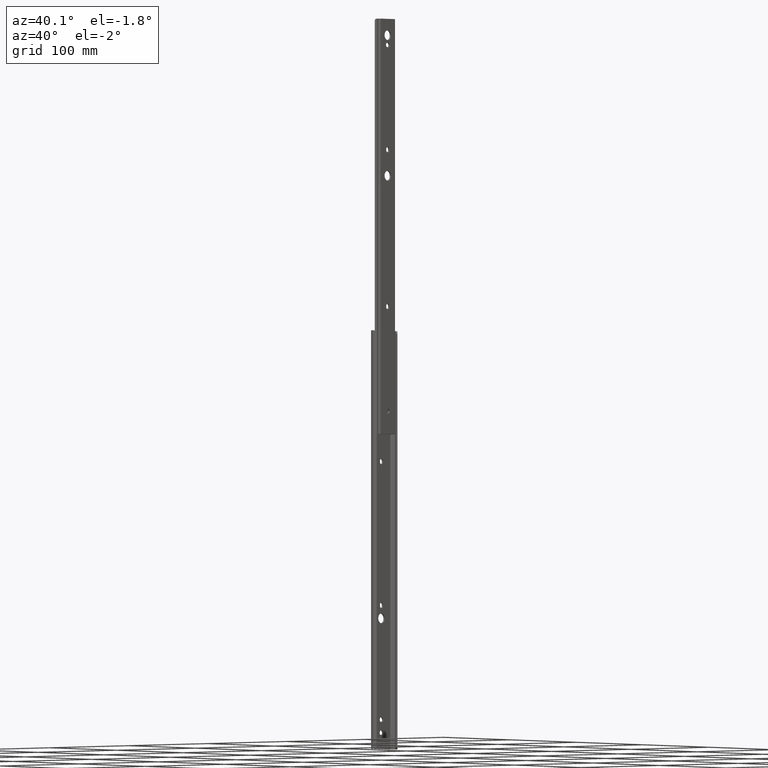
[diagram: clean part render]
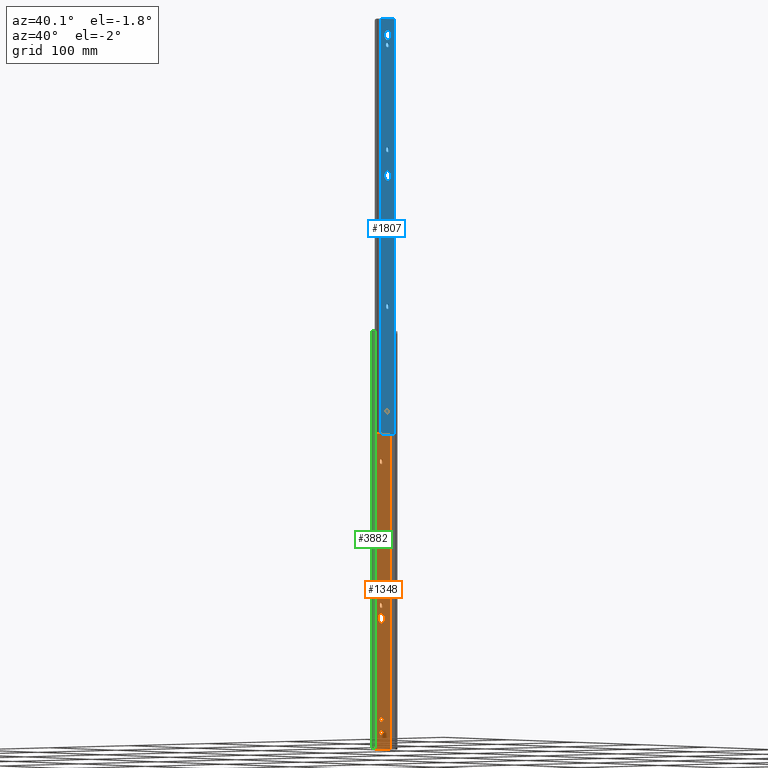
[diagram: same view with three faces highlighted in distinct colors, each labeled with its STEP entity id]
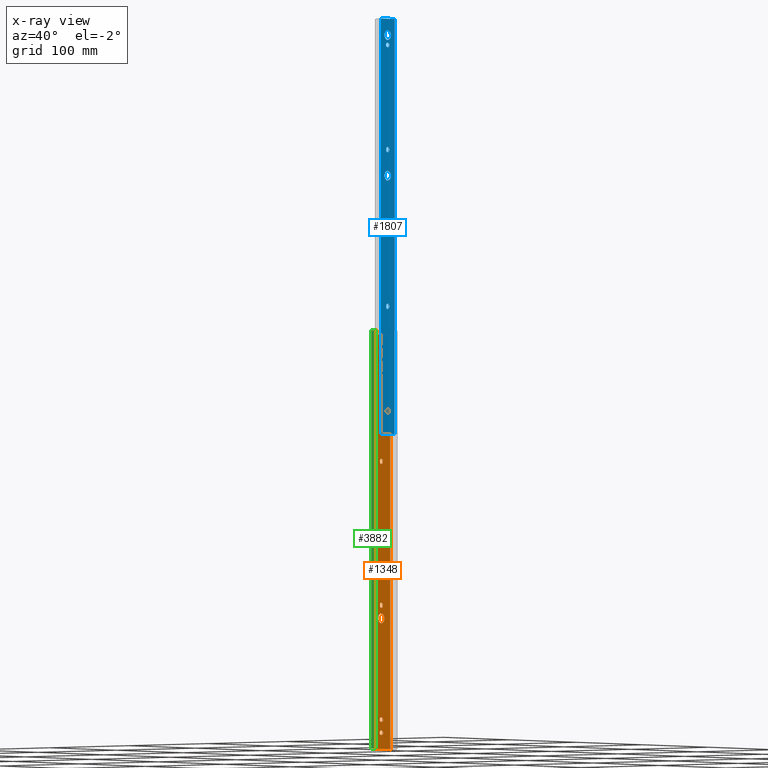
[diagram: x-ray of the same camera — body ghosted, the three highlighted faces saturated]
A machine part, auxiliary view with three faces highlighted in distinct colors.
The next image is the same camera in x-ray (body ghosted, the three faces saturated) — at least one of them is partly hidden behind the body in this view.
Their STEP definitions:

[orange] entity #1348 — the highlighted planar face has unit normal (1, -0, 0).
#23 = ORIENTED_EDGE ( 'NONE', *, *, #4455, .F. ) ;
#26 = CARTESIAN_POINT ( 'NONE',  ( 2.598992476797140713E-15, 0.3999999999999444555, -377.8000000000000114 ) ) ;
#50 = DIRECTION ( 'NONE',  ( 6.497481191993754238E-15, 1.000000000000000000, 0.0000000000000000000 ) ) ;
#55 = CIRCLE ( 'NONE', #1016, 2.249999999999918732 ) ;
#59 = VECTOR ( 'NONE', #2347, 1000.000000000000000 ) ;
#63 = AXIS2_PLACEMENT_3D ( 'NONE', #2251, #1122, #357 ) ;
#71 = VERTEX_POINT ( 'NONE', #1328 ) ;
#75 = DIRECTION ( 'NONE',  ( 6.497481191993754238E-15, 1.000000000000000000, 0.0000000000000000000 ) ) ;
#79 = CARTESIAN_POINT ( 'NONE',  ( 1.461933268198599713E-14, 2.250000000000001776, -127.4000000000000625 ) ) ;
#89 = EDGE_CURVE ( 'NONE', #1954, #2370, #321, .T. ) ;
#104 = VERTEX_POINT ( 'NONE', #4952 ) ;
#128 = ORIENTED_EDGE ( 'NONE', *, *, #3536, .F. ) ;
#142 = CARTESIAN_POINT ( 'NONE',  ( -2.598992476797308345E-15, -0.3999999999999702127, -388.2500000000001705 ) ) ;
#149 = CARTESIAN_POINT ( 'NONE',  ( 2.598992476798708574E-15, 0.4000000000001857625, -375.5500000000000682 ) ) ;
#179 = EDGE_CURVE ( 'NONE', #4694, #3589, #778, .T. ) ;
#180 = DIRECTION ( 'NONE',  ( 6.497481191993753449E-15, 1.000000000000000000, 0.0000000000000000000 ) ) ;
#192 = ORIENTED_EDGE ( 'NONE', *, *, #2171, .F. ) ;
#195 = CIRCLE ( 'NONE', #2517, 1.000000000000000888 ) ;
#197 = VERTEX_POINT ( 'NONE', #1107 ) ;
#210 = EDGE_CURVE ( 'NONE', #3334, #4040, #837, .T. ) ;
#224 = VECTOR ( 'NONE', #1625, 1000.000000000000000 ) ;
#251 = FACE_BOUND ( 'NONE', #2062, .T. ) ;
#272 = EDGE_CURVE ( 'NONE', #347, #1092, #1963, .T. ) ;
#280 = CARTESIAN_POINT ( 'NONE',  ( -3.964412013597883288E-26, -6.101459775647926783E-12, -279.4000000000000341 ) ) ;
#289 = DIRECTION ( 'NONE',  ( 6.497481191993755816E-15, 1.000000000000000000, 0.0000000000000000000 ) ) ;
#299 = EDGE_CURVE ( 'NONE', #2993, #1176, #2409, .T. ) ;
#305 = CIRCLE ( 'NONE', #3035, 2.250000000000005329 ) ;
#307 = EDGE_CURVE ( 'NONE', #3901, #2749, #4296, .T. ) ;
#321 = LINE ( 'NONE', #400, #1075 ) ;
#322 = ORIENTED_EDGE ( 'NONE', *, *, #2507, .F. ) ;
#346 = AXIS2_PLACEMENT_3D ( 'NONE', #725, #3217, #2029 ) ;
#347 = VERTEX_POINT ( 'NONE', #992 ) ;
#357 = DIRECTION ( 'NONE',  ( 6.497481191993753449E-15, 1.000000000000000000, 0.0000000000000000000 ) ) ;
#400 = CARTESIAN_POINT ( 'NONE',  ( -2.598992476797466512E-15, -0.3999999999999945821, -18.15000000000000924 ) ) ;
#410 = CARTESIAN_POINT ( 'NONE',  ( 0.0000000000000000000, -13.28582827844802061, 0.0000000000000000000 ) ) ;
#421 = CARTESIAN_POINT ( 'NONE',  ( 1.461933268198595295E-14, 2.250000000000001332, -127.4000000000000199 ) ) ;
#437 = DIRECTION ( 'NONE',  ( 6.497481191993753449E-15, 1.000000000000000000, 0.0000000000000000000 ) ) ;
#439 = CIRCLE ( 'NONE', #4050, 2.249999999999974243 ) ;
#440 = CARTESIAN_POINT ( 'NONE',  ( -2.598992476797423125E-15, -0.3999999999999941380, -18.14999999999999858 ) ) ;
#446 = DIRECTION ( 'NONE',  ( 1.000000000000000000, -6.497481191993754238E-15, 0.0000000000000000000 ) ) ;
#458 = EDGE_CURVE ( 'NONE', #694, #3476, #993, .T. ) ;
#478 = ORIENTED_EDGE ( 'NONE', *, *, #3625, .F. ) ;
#484 = EDGE_CURVE ( 'NONE', #1860, #2938, #4932, .T. ) ;
#488 = LINE ( 'NONE', #2880, #1402 ) ;
#506 = DIRECTION ( 'NONE',  ( 1.000000000000000000, -6.497481191993754238E-15, 0.0000000000000000000 ) ) ;
#514 = ORIENTED_EDGE ( 'NONE', *, *, #89, .F. ) ;
#522 = ORIENTED_EDGE ( 'NONE', *, *, #1294, .F. ) ;
#531 = ORIENTED_EDGE ( 'NONE', *, *, #3164, .T. ) ;
#567 = DIRECTION ( 'NONE',  ( 6.497481191993754238E-15, 1.000000000000000000, 0.0000000000000000000 ) ) ;
#568 = EDGE_CURVE ( 'NONE', #4557, #3025, #3811, .T. ) ;
#573 = EDGE_CURVE ( 'NONE', #347, #2818, #2307, .T. ) ;
#583 = CARTESIAN_POINT ( 'NONE',  ( 4.257297669784303651E-27, 6.552227769478082886E-13, -267.1000000000000227 ) ) ;
#604 = CIRCLE ( 'NONE', #3021, 2.249999999999999112 ) ;
#615 = AXIS2_PLACEMENT_3D ( 'NONE', #4773, #4278, #567 ) ;
#648 = VERTEX_POINT ( 'NONE', #2280 ) ;
#662 = EDGE_CURVE ( 'NONE', #3695, #197, #1527, .T. ) ;
#690 = DIRECTION ( 'NONE',  ( 1.000000000000000000, -6.497481191993754238E-15, 0.0000000000000000000 ) ) ;
#694 = VERTEX_POINT ( 'NONE', #1511 ) ;
#706 = DIRECTION ( 'NONE',  ( 6.497481191993754238E-15, 1.000000000000000000, 0.0000000000000000000 ) ) ;
#713 = VERTEX_POINT ( 'NONE', #1137 ) ;
#722 = DIRECTION ( 'NONE',  ( 1.000000000000000000, -6.497481191993754238E-15, 0.0000000000000000000 ) ) ;
#725 = CARTESIAN_POINT ( 'NONE',  ( 2.598992476797496094E-15, 0.3999999999999991340, -15.90000000000000391 ) ) ;
#737 = CARTESIAN_POINT ( 'NONE',  ( -1.461933268198592455E-14, -2.249999999999996891, -41.70000000000001705 ) ) ;
#739 = CARTESIAN_POINT ( 'NONE',  ( -4.873110893995315126E-14, -7.500000000000000000, -2.199999999999999734 ) ) ;
#754 = ORIENTED_EDGE ( 'NONE', *, *, #484, .F. ) ;
#769 = AXIS2_PLACEMENT_3D ( 'NONE', #4860, #1789, #1699 ) ;
#778 = LINE ( 'NONE', #2634, #2036 ) ;
#801 = DIRECTION ( 'NONE',  ( 0.0000000000000000000, 0.0000000000000000000, 1.000000000000000000 ) ) ;
#833 = EDGE_CURVE ( 'NONE', #3615, #4426, #439, .T. ) ;
#837 = CIRCLE ( 'NONE', #346, 2.250000000000005329 ) ;
#842 = CARTESIAN_POINT ( 'NONE',  ( -2.598992476797308345E-15, -0.3999999999999702127, -388.2500000000001705 ) ) ;
#853 = CIRCLE ( 'NONE', #1576, 2.250000000000005329 ) ;
#877 = CARTESIAN_POINT ( 'NONE',  ( 0.0000000000000000000, -13.28582827844802061, -406.4000000000000341 ) ) ;
#879 = CARTESIAN_POINT ( 'NONE',  ( 2.598992476797140713E-15, 0.3999999999999444555, -377.8000000000000114 ) ) ;
#883 = DIRECTION ( 'NONE',  ( 6.497481191993754238E-15, 1.000000000000000000, 0.0000000000000000000 ) ) ;
#900 = DIRECTION ( 'NONE',  ( -8.165942964201503348E-28, -1.257674520083127336E-13, -1.000000000000000000 ) ) ;
#901 = EDGE_CURVE ( 'NONE', #3476, #3589, #195, .T. ) ;
#906 = DIRECTION ( 'NONE',  ( -0.0000000000000000000, -0.0000000000000000000, -1.000000000000000000 ) ) ;
#913 = ORIENTED_EDGE ( 'NONE', *, *, #568, .F. ) ;
#926 = CIRCLE ( 'NONE', #3417, 2.249999999999998224 ) ;
#932 = CARTESIAN_POINT ( 'NONE',  ( -2.598992476797308345E-15, -0.3999999999999702127, -390.5000000000000568 ) ) ;
#941 = FACE_BOUND ( 'NONE', #2264, .T. ) ;
#953 = AXIS2_PLACEMENT_3D ( 'NONE', #3590, #4770, #1703 ) ;
#977 = CARTESIAN_POINT ( 'NONE',  ( 8.632441935927393671E-14, 13.28582827844788916, -406.4000000000000341 ) ) ;
#980 = ORIENTED_EDGE ( 'NONE', *, *, #3191, .F. ) ;
#987 = CARTESIAN_POINT ( 'NONE',  ( -4.873110893995315126E-14, -7.500000000000000000, -3.699999999999999734 ) ) ;
#992 = CARTESIAN_POINT ( 'NONE',  ( 0.0000000000000000000, -13.28582827844802061, -406.4000000000000341 ) ) ;
#993 = CIRCLE ( 'NONE', #4375, 1.000000000000000888 ) ;
#994 = CARTESIAN_POINT ( 'NONE',  ( -1.461933268198167733E-14, -2.249999999999342748, -267.1000000000000227 ) ) ;
#1016 = AXIS2_PLACEMENT_3D ( 'NONE', #932, #4354, #883 ) ;
#1029 = CARTESIAN_POINT ( 'NONE',  ( -4.697678901811484297E-14, -7.230000000000000426, -1.770839271567072711E-15 ) ) ;
#1035 = DIRECTION ( 'NONE',  ( 6.497481191993753449E-15, 1.000000000000000000, 0.0000000000000000000 ) ) ;
#1043 = FACE_OUTER_BOUND ( 'NONE', #2665, .T. ) ;
#1044 = EDGE_LOOP ( 'NONE', ( #4308, #4279, #1160, #2067, #2454 ) ) ;
#1061 = DIRECTION ( 'NONE',  ( -6.497481191993754238E-15, -1.000000000000000000, -0.0000000000000000000 ) ) ;
#1067 = DIRECTION ( 'NONE',  ( -6.497481191993754238E-15, -1.000000000000000000, -0.0000000000000000000 ) ) ;
#1075 = VECTOR ( 'NONE', #3011, 1000.000000000000000 ) ;
#1083 = ORIENTED_EDGE ( 'NONE', *, *, #272, .T. ) ;
#1089 = CIRCLE ( 'NONE', #3330, 4.749999999999976019 ) ;
#1092 = VERTEX_POINT ( 'NONE', #3329 ) ;
#1098 = EDGE_CURVE ( 'NONE', #2818, #4370, #4972, .T. ) ;
#1107 = CARTESIAN_POINT ( 'NONE',  ( 1.461933268199019071E-14, 2.250000000000653255, -266.3000000000000682 ) ) ;
#1114 = ORIENTED_EDGE ( 'NONE', *, *, #2203, .F. ) ;
#1120 = CIRCLE ( 'NONE', #953, 2.250000000000005329 ) ;
#1122 = DIRECTION ( 'NONE',  ( 1.000000000000000000, -6.497481191993754238E-15, 0.0000000000000000000 ) ) ;
#1137 = CARTESIAN_POINT ( 'NONE',  ( -1.461933268198167733E-14, -2.249999999999342748, -267.1000000000000227 ) ) ;
#1153 = DIRECTION ( 'NONE',  ( 6.497481191993755816E-15, 1.000000000000000000, 0.0000000000000000000 ) ) ;
#1160 = ORIENTED_EDGE ( 'NONE', *, *, #1720, .F. ) ;
#1161 = DIRECTION ( 'NONE',  ( 1.000000000000000000, -6.497481191993753449E-15, 0.0000000000000000000 ) ) ;
#1165 = VECTOR ( 'NONE', #2228, 1000.000000000000000 ) ;
#1176 = VERTEX_POINT ( 'NONE', #4192 ) ;
#1195 = CARTESIAN_POINT ( 'NONE',  ( 1.721832515878292012E-14, 2.649999999999919087, -377.8000000000000114 ) ) ;
#1199 = CARTESIAN_POINT ( 'NONE',  ( -1.461933268198527138E-14, -2.249999999999896083, -40.89999999999997726 ) ) ;
#1205 = ORIENTED_EDGE ( 'NONE', *, *, #3706, .F. ) ;
#1206 = CARTESIAN_POINT ( 'NONE',  ( 2.040444164743638317E-27, 3.140361787053557620E-13, -127.4000000000000341 ) ) ;
#1222 = ORIENTED_EDGE ( 'NONE', *, *, #4142, .F. ) ;
#1253 = ORIENTED_EDGE ( 'NONE', *, *, #1759, .F. ) ;
#1288 = EDGE_CURVE ( 'NONE', #3535, #2993, #3652, .T. ) ;
#1294 = EDGE_CURVE ( 'NONE', #694, #1430, #2045, .T. ) ;
#1312 = DIRECTION ( 'NONE',  ( 1.000000000000000000, -6.497481191993754238E-15, 0.0000000000000000000 ) ) ;
#1323 = CARTESIAN_POINT ( 'NONE',  ( 5.421010862427522170E-14, 8.360230118118327169, -1.000000000000000000 ) ) ;
#1328 = CARTESIAN_POINT ( 'NONE',  ( 2.598992476798739339E-15, 0.4000000000001905920, -392.7500000000000000 ) ) ;
#1333 = DIRECTION ( 'NONE',  ( 6.497481191993754238E-15, 1.000000000000000000, 1.156482317317871478E-16 ) ) ;
#1337 = DIRECTION ( 'NONE',  ( 6.497481191993755816E-15, 1.000000000000000000, 0.0000000000000000000 ) ) ;
#1348 = ADVANCED_FACE ( 'NONE', ( #3111, #4834, #3633, #941, #4034, #2568, #4764, #251, #1043 ), #4109, .T. ) ;
#1355 = CARTESIAN_POINT ( 'NONE',  ( -5.442694905877232259E-14, -8.360230118118328946, -1.000000000000000000 ) ) ;
#1373 = EDGE_CURVE ( 'NONE', #713, #3695, #926, .T. ) ;
#1388 = CARTESIAN_POINT ( 'NONE',  ( -2.598992476797470062E-15, -0.3999999999999951372, -15.90000000000000391 ) ) ;
#1395 = VECTOR ( 'NONE', #906, 1000.000000000000000 ) ;
#1402 = VECTOR ( 'NONE', #3183, 1000.000000000000000 ) ;
#1410 = CARTESIAN_POINT ( 'NONE',  ( 1.461933268199023489E-14, 2.250000000000654143, -267.1000000000000227 ) ) ;
#1415 = VECTOR ( 'NONE', #1950, 1000.000000000000000 ) ;
#1418 = CARTESIAN_POINT ( 'NONE',  ( 1.461933268198627796E-14, 2.250000000000051070, -40.89999999999999147 ) ) ;
#1430 = VERTEX_POINT ( 'NONE', #2542 ) ;
#1442 = EDGE_CURVE ( 'NONE', #3715, #1543, #3257, .T. ) ;
#1460 = EDGE_CURVE ( 'NONE', #3025, #4557, #1089, .T. ) ;
#1474 = ORIENTED_EDGE ( 'NONE', *, *, #4137, .F. ) ;
#1475 = AXIS2_PLACEMENT_3D ( 'NONE', #2197, #3002, #4114 ) ;
#1484 = DIRECTION ( 'NONE',  ( 1.000000000000000000, -6.497481191993754238E-15, 0.0000000000000000000 ) ) ;
#1497 = DIRECTION ( 'NONE',  ( 6.497481191993752660E-15, 1.000000000000000000, -0.0000000000000000000 ) ) ;
#1504 = DIRECTION ( 'NONE',  ( -7.914797957524653599E-16, -0.1218133261744156343, 0.9925530280878323008 ) ) ;
#1511 = CARTESIAN_POINT ( 'NONE',  ( 5.432043795321358658E-14, 8.360230118118327169, 0.0000000000000000000 ) ) ;
#1527 = LINE ( 'NONE', #4599, #3567 ) ;
#1541 = CARTESIAN_POINT ( 'NONE',  ( -2.598992476797308345E-15, -0.3999999999999702127, -392.7500000000000000 ) ) ;
#1543 = VERTEX_POINT ( 'NONE', #2870 ) ;
#1545 = VERTEX_POINT ( 'NONE', #4827 ) ;
#1555 = DIRECTION ( 'NONE',  ( 6.497481191993754238E-15, 1.000000000000000000, 0.0000000000000000000 ) ) ;
#1558 = DIRECTION ( 'NONE',  ( 1.000000000000000000, -6.497481191993754238E-15, 0.0000000000000000000 ) ) ;
#1576 = AXIS2_PLACEMENT_3D ( 'NONE', #1388, #722, #289 ) ;
#1590 = CIRCLE ( 'NONE', #63, 2.249999999999998224 ) ;
#1595 = VECTOR ( 'NONE', #1035, 1000.000000000000000 ) ;
#1616 = EDGE_CURVE ( 'NONE', #1543, #1710, #2039, .T. ) ;
#1625 = DIRECTION ( 'NONE',  ( -6.497481191993755027E-15, -1.000000000000000000, -0.0000000000000000000 ) ) ;
#1627 = EDGE_CURVE ( 'NONE', #2687, #713, #1661, .T. ) ;
#1633 = VECTOR ( 'NONE', #4372, 1000.000000000000000 ) ;
#1661 = LINE ( 'NONE', #994, #1395 ) ;
#1695 = CARTESIAN_POINT ( 'NONE',  ( 2.598992476797951267E-15, 0.4000000000000691891, -28.60000000000000497 ) ) ;
#1697 = ORIENTED_EDGE ( 'NONE', *, *, #458, .T. ) ;
#1699 = DIRECTION ( 'NONE',  ( 6.497481191993753449E-15, 1.000000000000000000, 0.0000000000000000000 ) ) ;
#1703 = DIRECTION ( 'NONE',  ( 6.497481191993755816E-15, 1.000000000000000000, 0.0000000000000000000 ) ) ;
#1710 = VERTEX_POINT ( 'NONE', #4064 ) ;
#1712 = EDGE_LOOP ( 'NONE', ( #1253, #4107, #4669, #23, #514 ) ) ;
#1720 = EDGE_CURVE ( 'NONE', #3890, #648, #3735, .T. ) ;
#1744 = DIRECTION ( 'NONE',  ( 6.497481191993753449E-15, 1.000000000000000000, 0.0000000000000000000 ) ) ;
#1759 = EDGE_CURVE ( 'NONE', #2278, #1954, #853, .T. ) ;
#1760 = ORIENTED_EDGE ( 'NONE', *, *, #1442, .F. ) ;
#1789 = DIRECTION ( 'NONE',  ( 1.000000000000000000, -6.497481191993753449E-15, 0.0000000000000000000 ) ) ;
#1790 = ORIENTED_EDGE ( 'NONE', *, *, #3409, .F. ) ;
#1804 = DIRECTION ( 'NONE',  ( -7.914797957524653599E-16, -0.1218133261744156343, -0.9925530280878323008 ) ) ;
#1818 = DIRECTION ( 'NONE',  ( 1.000000000000000000, -6.497481191993754238E-15, 0.0000000000000000000 ) ) ;
#1819 = ORIENTED_EDGE ( 'NONE', *, *, #179, .F. ) ;
#1846 = DIRECTION ( 'NONE',  ( -2.515264507369570747E-27, -3.870601755773005967E-13, -1.000000000000000000 ) ) ;
#1860 = VERTEX_POINT ( 'NONE', #3870 ) ;
#1865 = CARTESIAN_POINT ( 'NONE',  ( -1.461933268198592455E-14, -2.249999999999996891, -127.4000000000000199 ) ) ;
#1873 = EDGE_LOOP ( 'NONE', ( #2836, #2299, #1205, #3757 ) ) ;
#1878 = CARTESIAN_POINT ( 'NONE',  ( 0.0000000000000000000, -13.28582827844802061, -406.4000000000000341 ) ) ;
#1893 = VECTOR ( 'NONE', #3582, 1000.000000000000000 ) ;
#1894 = CARTESIAN_POINT ( 'NONE',  ( -2.598992476797317812E-15, -0.3999999999999717115, -375.5500000000000682 ) ) ;
#1913 = CARTESIAN_POINT ( 'NONE',  ( 4.873110893995315126E-14, 7.500000000000000000, -2.199999999999997957 ) ) ;
#1928 = LINE ( 'NONE', #3488, #4967 ) ;
#1931 = CARTESIAN_POINT ( 'NONE',  ( 2.598992476797506350E-15, 0.4000000000000007438, -18.15000000000000924 ) ) ;
#1942 = ORIENTED_EDGE ( 'NONE', *, *, #307, .F. ) ;
#1950 = DIRECTION ( 'NONE',  ( 6.497481191993755027E-15, 1.000000000000000000, 0.0000000000000000000 ) ) ;
#1954 = VERTEX_POINT ( 'NONE', #440 ) ;
#1963 = LINE ( 'NONE', #877, #1633 ) ;
#1984 = CARTESIAN_POINT ( 'NONE',  ( -1.461933268198592455E-14, -2.249999999999996891, -41.70000000000001705 ) ) ;
#2009 = CARTESIAN_POINT ( 'NONE',  ( 1.721832515878348178E-14, 2.650000000000004796, -15.90000000000000391 ) ) ;
#2029 = DIRECTION ( 'NONE',  ( 6.497481191993755816E-15, 1.000000000000000000, 0.0000000000000000000 ) ) ;
#2035 = DIRECTION ( 'NONE',  ( 1.000000000000000000, -6.497481191993754238E-15, 0.0000000000000000000 ) ) ;
#2036 = VECTOR ( 'NONE', #1504, 1000.000000000000227 ) ;
#2039 = LINE ( 'NONE', #4780, #3731 ) ;
#2045 = LINE ( 'NONE', #4716, #1893 ) ;
#2059 = VERTEX_POINT ( 'NONE', #3212 ) ;
#2062 = EDGE_LOOP ( 'NONE', ( #913, #3554 ) ) ;
#2067 = ORIENTED_EDGE ( 'NONE', *, *, #3478, .F. ) ;
#2082 = EDGE_CURVE ( 'NONE', #1710, #4694, #488, .T. ) ;
#2099 = DIRECTION ( 'NONE',  ( 6.497481191993750294E-15, 1.000000000000000000, 0.0000000000000000000 ) ) ;
#2105 = EDGE_LOOP ( 'NONE', ( #2683, #192, #322, #754, #1474 ) ) ;
#2119 = VECTOR ( 'NONE', #2516, 1000.000000000000000 ) ;
#2128 = DIRECTION ( 'NONE',  ( 6.497481191993755816E-15, 1.000000000000000000, 0.0000000000000000000 ) ) ;
#2130 = ORIENTED_EDGE ( 'NONE', *, *, #573, .F. ) ;
#2138 = CIRCLE ( 'NONE', #3114, 2.249999999999974243 ) ;
#2162 = ORIENTED_EDGE ( 'NONE', *, *, #1616, .F. ) ;
#2171 = EDGE_CURVE ( 'NONE', #4665, #4022, #3359, .T. ) ;
#2197 = CARTESIAN_POINT ( 'NONE',  ( -3.964412013597883288E-26, -6.101459775647926783E-12, -279.4000000000000341 ) ) ;
#2203 = EDGE_CURVE ( 'NONE', #2351, #4950, #4538, .T. ) ;
#2215 = LINE ( 'NONE', #4479, #4875 ) ;
#2228 = DIRECTION ( 'NONE',  ( 0.0000000000000000000, 0.0000000000000000000, 1.000000000000000000 ) ) ;
#2251 = CARTESIAN_POINT ( 'NONE',  ( 4.256342815438988094E-27, 6.550758193319107377E-13, -266.3000000000000682 ) ) ;
#2260 = CARTESIAN_POINT ( 'NONE',  ( 2.598992476797487022E-15, 0.3999999999999977462, -26.34999999999999787 ) ) ;
#2264 = EDGE_LOOP ( 'NONE', ( #3448, #478, #1222, #3837 ) ) ;
#2277 = CARTESIAN_POINT ( 'NONE',  ( -2.598992476797473612E-15, -0.3999999999999956923, -13.64999999999999858 ) ) ;
#2278 = VERTEX_POINT ( 'NONE', #2277 ) ;
#2280 = CARTESIAN_POINT ( 'NONE',  ( 2.598992476798729084E-15, 0.4000000000001888711, -388.2500000000001705 ) ) ;
#2284 = AXIS2_PLACEMENT_3D ( 'NONE', #4439, #690, #1153 ) ;
#2285 = CARTESIAN_POINT ( 'NONE',  ( 6.638624835805543472E-28, 1.021722824528635392E-13, -40.89999999999997016 ) ) ;
#2299 = ORIENTED_EDGE ( 'NONE', *, *, #1627, .F. ) ;
#2307 = LINE ( 'NONE', #1878, #1165 ) ;
#2345 = CARTESIAN_POINT ( 'NONE',  ( 5.421010862427522170E-14, 8.360230118118327169, -1.000000000000000000 ) ) ;
#2347 = DIRECTION ( 'NONE',  ( -6.497481191993755027E-15, -1.000000000000000000, -0.0000000000000000000 ) ) ;
#2351 = VERTEX_POINT ( 'NONE', #3467 ) ;
#2370 = VERTEX_POINT ( 'NONE', #1931 ) ;
#2409 = LINE ( 'NONE', #421, #4212 ) ;
#2416 = VERTEX_POINT ( 'NONE', #842 ) ;
#2442 = CARTESIAN_POINT ( 'NONE',  ( -2.598992476797473612E-15, -0.3999999999999956923, -26.34999999999999787 ) ) ;
#2454 = ORIENTED_EDGE ( 'NONE', *, *, #3560, .F. ) ;
#2481 = LINE ( 'NONE', #142, #224 ) ;
#2497 = DIRECTION ( 'NONE',  ( 1.000000000000000000, -6.497481191993754238E-15, 0.0000000000000000000 ) ) ;
#2507 = EDGE_CURVE ( 'NONE', #2938, #4665, #4390, .T. ) ;
#2516 = DIRECTION ( 'NONE',  ( -0.0000000000000000000, -0.0000000000000000000, -1.000000000000000000 ) ) ;
#2517 = AXIS2_PLACEMENT_3D ( 'NONE', #2345, #1161, #2691 ) ;
#2532 = VERTEX_POINT ( 'NONE', #2822 ) ;
#2542 = CARTESIAN_POINT ( 'NONE',  ( 8.632441935927393671E-14, 13.28582827844788916, 0.0000000000000000000 ) ) ;
#2544 = EDGE_CURVE ( 'NONE', #2749, #2351, #604, .T. ) ;
#2568 = FACE_BOUND ( 'NONE', #4172, .T. ) ;
#2608 = LINE ( 'NONE', #977, #2779 ) ;
#2634 = CARTESIAN_POINT ( 'NONE',  ( 4.697678901811484297E-14, 7.230000000000000426, 0.0000000000000000000 ) ) ;
#2665 = EDGE_LOOP ( 'NONE', ( #3857, #531, #4570, #2130, #1083, #4923, #522, #1697, #4383, #1819, #3394, #2162, #1760 ) ) ;
#2683 = ORIENTED_EDGE ( 'NONE', *, *, #4765, .F. ) ;
#2687 = VERTEX_POINT ( 'NONE', #4129 ) ;
#2691 = DIRECTION ( 'NONE',  ( 6.497481191993750294E-15, 1.000000000000000000, 0.0000000000000000000 ) ) ;
#2695 = LINE ( 'NONE', #1541, #1415 ) ;
#2701 = AXIS2_PLACEMENT_3D ( 'NONE', #1695, #2874, #1337 ) ;
#2720 = ORIENTED_EDGE ( 'NONE', *, *, #833, .F. ) ;
#2749 = VERTEX_POINT ( 'NONE', #737 ) ;
#2779 = VECTOR ( 'NONE', #4445, 1000.000000000000000 ) ;
#2783 = AXIS2_PLACEMENT_3D ( 'NONE', #1355, #3644, #2128 ) ;
#2785 = CIRCLE ( 'NONE', #615, 2.249999999999918732 ) ;
#2818 = VERTEX_POINT ( 'NONE', #410 ) ;
#2822 = CARTESIAN_POINT ( 'NONE',  ( 2.598992476798721984E-15, 0.4000000000001878719, -380.0500000000000114 ) ) ;
#2836 = ORIENTED_EDGE ( 'NONE', *, *, #1373, .F. ) ;
#2860 = DIRECTION ( 'NONE',  ( 1.000000000000000000, -6.497481191993753449E-15, 0.0000000000000000000 ) ) ;
#2870 = CARTESIAN_POINT ( 'NONE',  ( -4.873110893995315126E-14, -7.500000000000000000, -3.699999999999999734 ) ) ;
#2874 = DIRECTION ( 'NONE',  ( 1.000000000000000000, -6.497481191993754238E-15, 0.0000000000000000000 ) ) ;
#2879 = EDGE_CURVE ( 'NONE', #2416, #1545, #55, .T. ) ;
#2880 = CARTESIAN_POINT ( 'NONE',  ( 4.873110893995315126E-14, 7.500000000000000000, -2.199999999999997957 ) ) ;
#2892 = LINE ( 'NONE', #1029, #3915 ) ;
#2938 = VERTEX_POINT ( 'NONE', #3549 ) ;
#2941 = LINE ( 'NONE', #3397, #1595 ) ;
#2993 = VERTEX_POINT ( 'NONE', #79 ) ;
#3002 = DIRECTION ( 'NONE',  ( 1.000000000000000000, -6.497481191993754238E-15, 0.0000000000000000000 ) ) ;
#3010 = CARTESIAN_POINT ( 'NONE',  ( 3.086303566193053184E-14, 4.749999999993873345, -279.4000000000000341 ) ) ;
#3011 = DIRECTION ( 'NONE',  ( 6.497481191993753449E-15, 1.000000000000000000, 0.0000000000000000000 ) ) ;
#3021 = AXIS2_PLACEMENT_3D ( 'NONE', #4360, #1312, #180 ) ;
#3025 = VERTEX_POINT ( 'NONE', #3172 ) ;
#3035 = AXIS2_PLACEMENT_3D ( 'NONE', #4377, #4775, #3366 ) ;
#3056 = EDGE_CURVE ( 'NONE', #104, #3715, #2892, .T. ) ;
#3111 = FACE_BOUND ( 'NONE', #1712, .T. ) ;
#3114 = AXIS2_PLACEMENT_3D ( 'NONE', #879, #446, #75 ) ;
#3122 = CARTESIAN_POINT ( 'NONE',  ( -2.598992476797312684E-15, -0.3999999999999709344, -377.8000000000000114 ) ) ;
#3125 = CARTESIAN_POINT ( 'NONE',  ( -1.461933268198391454E-14, -2.249999999999687361, -126.5999999999999659 ) ) ;
#3145 = EDGE_CURVE ( 'NONE', #1092, #1430, #2608, .T. ) ;
#3164 = EDGE_CURVE ( 'NONE', #104, #4370, #3184, .T. ) ;
#3172 = CARTESIAN_POINT ( 'NONE',  ( -3.086303566200982183E-14, -4.750000000006077805, -279.4000000000000341 ) ) ;
#3183 = DIRECTION ( 'NONE',  ( -0.0000000000000000000, -0.0000000000000000000, 1.000000000000000000 ) ) ;
#3184 = CIRCLE ( 'NONE', #2783, 1.000000000000000000 ) ;
#3191 = EDGE_CURVE ( 'NONE', #4709, #3315, #4234, .T. ) ;
#3212 = CARTESIAN_POINT ( 'NONE',  ( -2.598992476797423125E-15, -0.3999999999999941380, -30.84999999999998721 ) ) ;
#3217 = DIRECTION ( 'NONE',  ( 1.000000000000000000, -6.497481191993754238E-15, 0.0000000000000000000 ) ) ;
#3240 = CARTESIAN_POINT ( 'NONE',  ( 4.771262743228146904E-14, 7.360230118118327169, -1.000000000000000000 ) ) ;
#3248 = EDGE_LOOP ( 'NONE', ( #3699, #1942, #4065, #1114 ) ) ;
#3257 = LINE ( 'NONE', #987, #2119 ) ;
#3315 = VERTEX_POINT ( 'NONE', #4298 ) ;
#3328 = DIRECTION ( 'NONE',  ( 0.0000000000000000000, 0.0000000000000000000, 1.000000000000000000 ) ) ;
#3329 = CARTESIAN_POINT ( 'NONE',  ( 8.632441935927393671E-14, 13.28582827844788916, -406.4000000000000341 ) ) ;
#3330 = AXIS2_PLACEMENT_3D ( 'NONE', #280, #1818, #3355 ) ;
#3334 = VERTEX_POINT ( 'NONE', #2009 ) ;
#3346 = CARTESIAN_POINT ( 'NONE',  ( 1.201525051188588167E-29, 1.849216666712504918E-15, -126.5999999999999943 ) ) ;
#3355 = DIRECTION ( 'NONE',  ( 6.497481191993754238E-15, 1.000000000000000000, 0.0000000000000000000 ) ) ;
#3359 = LINE ( 'NONE', #4893, #4311 ) ;
#3366 = DIRECTION ( 'NONE',  ( 6.497481191993755816E-15, 1.000000000000000000, 0.0000000000000000000 ) ) ;
#3394 = ORIENTED_EDGE ( 'NONE', *, *, #2082, .F. ) ;
#3397 = CARTESIAN_POINT ( 'NONE',  ( -2.598992476797466512E-15, -0.3999999999999945821, -30.85000000000000853 ) ) ;
#3409 = EDGE_CURVE ( 'NONE', #2532, #3615, #2138, .T. ) ;
#3414 = VECTOR ( 'NONE', #1497, 1000.000000000000000 ) ;
#3417 = AXIS2_PLACEMENT_3D ( 'NONE', #583, #2497, #1744 ) ;
#3448 = ORIENTED_EDGE ( 'NONE', *, *, #1288, .F. ) ;
#3465 = DIRECTION ( 'NONE',  ( 6.497481191993754238E-15, 1.000000000000000000, 0.0000000000000000000 ) ) ;
#3467 = CARTESIAN_POINT ( 'NONE',  ( 1.461933268198599713E-14, 2.250000000000001776, -41.70000000000007390 ) ) ;
#3476 = VERTEX_POINT ( 'NONE', #3240 ) ;
#3478 = EDGE_CURVE ( 'NONE', #71, #3890, #2785, .T. ) ;
#3484 = CARTESIAN_POINT ( 'NONE',  ( 4.787134332115642588E-14, 7.367677090030496423, -1.121813326174415426 ) ) ;
#3488 = CARTESIAN_POINT ( 'NONE',  ( -2.598992476797317812E-15, -0.3999999999999717115, -380.0500000000000114 ) ) ;
#3493 = VECTOR ( 'NONE', #900, 1000.000000000000000 ) ;
#3496 = DIRECTION ( 'NONE',  ( 6.497481191993755816E-15, 1.000000000000000000, 0.0000000000000000000 ) ) ;
#3497 = DIRECTION ( 'NONE',  ( 0.0000000000000000000, 0.0000000000000000000, 1.000000000000000000 ) ) ;
#3535 = VERTEX_POINT ( 'NONE', #4233 ) ;
#3536 = EDGE_CURVE ( 'NONE', #4426, #4709, #3832, .T. ) ;
#3548 = DIRECTION ( 'NONE',  ( 6.497481191993754238E-15, 1.000000000000000000, 0.0000000000000000000 ) ) ;
#3549 = CARTESIAN_POINT ( 'NONE',  ( 1.721832515878393301E-14, 2.650000000000074518, -28.60000000000000497 ) ) ;
#3554 = ORIENTED_EDGE ( 'NONE', *, *, #1460, .F. ) ;
#3560 = EDGE_CURVE ( 'NONE', #1545, #71, #2695, .T. ) ;
#3567 = VECTOR ( 'NONE', #801, 1000.000000000000000 ) ;
#3582 = DIRECTION ( 'NONE',  ( 6.497481191993752660E-15, 1.000000000000000000, -0.0000000000000000000 ) ) ;
#3589 = VERTEX_POINT ( 'NONE', #3484 ) ;
#3590 = CARTESIAN_POINT ( 'NONE',  ( -2.598992476797470062E-15, -0.3999999999999951372, -28.60000000000000497 ) ) ;
#3615 = VERTEX_POINT ( 'NONE', #1195 ) ;
#3625 = EDGE_CURVE ( 'NONE', #4230, #3535, #3781, .T. ) ;
#3633 = FACE_BOUND ( 'NONE', #3248, .T. ) ;
#3644 = DIRECTION ( 'NONE',  ( 1.000000000000000000, -6.497481191993753449E-15, 0.0000000000000000000 ) ) ;
#3652 = CIRCLE ( 'NONE', #4221, 2.249999999999999112 ) ;
#3695 = VERTEX_POINT ( 'NONE', #1410 ) ;
#3699 = ORIENTED_EDGE ( 'NONE', *, *, #2544, .F. ) ;
#3706 = EDGE_CURVE ( 'NONE', #197, #2687, #1590, .T. ) ;
#3715 = VERTEX_POINT ( 'NONE', #739 ) ;
#3731 = VECTOR ( 'NONE', #1333, 1000.000000000000000 ) ;
#3735 = CIRCLE ( 'NONE', #4705, 2.249999999999918732 ) ;
#3757 = ORIENTED_EDGE ( 'NONE', *, *, #662, .F. ) ;
#3760 = CARTESIAN_POINT ( 'NONE',  ( 1.461933268198595295E-14, 2.250000000000001332, -41.70000000000001705 ) ) ;
#3781 = LINE ( 'NONE', #1865, #4399 ) ;
#3811 = CIRCLE ( 'NONE', #1475, 4.749999999999976019 ) ;
#3829 = VECTOR ( 'NONE', #3328, 1000.000000000000000 ) ;
#3832 = LINE ( 'NONE', #1894, #59 ) ;
#3837 = ORIENTED_EDGE ( 'NONE', *, *, #299, .F. ) ;
#3838 = AXIS2_PLACEMENT_3D ( 'NONE', #3122, #4148, #1555 ) ;
#3857 = ORIENTED_EDGE ( 'NONE', *, *, #3056, .F. ) ;
#3870 = CARTESIAN_POINT ( 'NONE',  ( 2.598992476797507138E-15, 0.4000000000000008549, -30.85000000000000853 ) ) ;
#3873 = DIRECTION ( 'NONE',  ( 1.000000000000000000, -6.497481191993754238E-15, 0.0000000000000000000 ) ) ;
#3887 = EDGE_CURVE ( 'NONE', #3315, #2532, #1928, .T. ) ;
#3890 = VERTEX_POINT ( 'NONE', #4615 ) ;
#3901 = VERTEX_POINT ( 'NONE', #1199 ) ;
#3915 = VECTOR ( 'NONE', #1804, 1000.000000000000227 ) ;
#4022 = VERTEX_POINT ( 'NONE', #2442 ) ;
#4023 = CARTESIAN_POINT ( 'NONE',  ( -5.432043795321351716E-14, -8.360230118118330722, 0.0000000000000000000 ) ) ;
#4034 = FACE_BOUND ( 'NONE', #1873, .T. ) ;
#4040 = VERTEX_POINT ( 'NONE', #4853 ) ;
#4050 = AXIS2_PLACEMENT_3D ( 'NONE', #26, #1558, #50 ) ;
#4064 = CARTESIAN_POINT ( 'NONE',  ( 4.873110893995315126E-14, 7.500000000000000000, -3.699999999999997957 ) ) ;
#4065 = ORIENTED_EDGE ( 'NONE', *, *, #4619, .F. ) ;
#4081 = EDGE_CURVE ( 'NONE', #4040, #2278, #2215, .T. ) ;
#4107 = ORIENTED_EDGE ( 'NONE', *, *, #4081, .F. ) ;
#4109 = PLANE ( 'NONE',  #769 ) ;
#4114 = DIRECTION ( 'NONE',  ( 6.497481191993754238E-15, 1.000000000000000000, 0.0000000000000000000 ) ) ;
#4129 = CARTESIAN_POINT ( 'NONE',  ( -1.461933268198167733E-14, -2.249999999999342748, -266.3000000000000682 ) ) ;
#4137 = EDGE_CURVE ( 'NONE', #2059, #1860, #2941, .T. ) ;
#4142 = EDGE_CURVE ( 'NONE', #1176, #4230, #4883, .T. ) ;
#4148 = DIRECTION ( 'NONE',  ( 1.000000000000000000, -6.497481191993754238E-15, 0.0000000000000000000 ) ) ;
#4164 = AXIS2_PLACEMENT_3D ( 'NONE', #3346, #1484, #706 ) ;
#4172 = EDGE_LOOP ( 'NONE', ( #980, #128, #2720, #1790, #4577 ) ) ;
#4192 = CARTESIAN_POINT ( 'NONE',  ( 1.461933268198494637E-14, 2.249999999999845901, -126.5999999999999943 ) ) ;
#4212 = VECTOR ( 'NONE', #3497, 1000.000000000000000 ) ;
#4221 = AXIS2_PLACEMENT_3D ( 'NONE', #1206, #506, #437 ) ;
#4230 = VERTEX_POINT ( 'NONE', #3125 ) ;
#4233 = CARTESIAN_POINT ( 'NONE',  ( -1.461933268198592455E-14, -2.249999999999996891, -127.4000000000000199 ) ) ;
#4234 = CIRCLE ( 'NONE', #3838, 2.249999999999974243 ) ;
#4278 = DIRECTION ( 'NONE',  ( 1.000000000000000000, -6.497481191993754238E-15, 0.0000000000000000000 ) ) ;
#4279 = ORIENTED_EDGE ( 'NONE', *, *, #4818, .F. ) ;
#4296 = LINE ( 'NONE', #1984, #3493 ) ;
#4298 = CARTESIAN_POINT ( 'NONE',  ( -2.598992476797287835E-15, -0.3999999999999715450, -380.0500000000000114 ) ) ;
#4308 = ORIENTED_EDGE ( 'NONE', *, *, #2879, .F. ) ;
#4311 = VECTOR ( 'NONE', #1067, 1000.000000000000000 ) ;
#4327 = CIRCLE ( 'NONE', #4654, 2.249999999999948486 ) ;
#4354 = DIRECTION ( 'NONE',  ( 1.000000000000000000, -6.497481191993754238E-15, 0.0000000000000000000 ) ) ;
#4360 = CARTESIAN_POINT ( 'NONE',  ( 1.297010485720133455E-29, 1.996174282610190330E-15, -41.70000000000001705 ) ) ;
#4370 = VERTEX_POINT ( 'NONE', #4023 ) ;
#4372 = DIRECTION ( 'NONE',  ( 0.0000000000000000000, 1.000000000000000000, 0.0000000000000000000 ) ) ;
#4375 = AXIS2_PLACEMENT_3D ( 'NONE', #1323, #2860, #2099 ) ;
#4377 = CARTESIAN_POINT ( 'NONE',  ( 2.598992476797496094E-15, 0.3999999999999991340, -15.90000000000000391 ) ) ;
#4383 = ORIENTED_EDGE ( 'NONE', *, *, #901, .T. ) ;
#4390 = CIRCLE ( 'NONE', #2701, 2.250000000000005329 ) ;
#4399 = VECTOR ( 'NONE', #1846, 1000.000000000000000 ) ;
#4426 = VERTEX_POINT ( 'NONE', #149 ) ;
#4439 = CARTESIAN_POINT ( 'NONE',  ( 2.598992476797951267E-15, 0.4000000000000691891, -28.60000000000000497 ) ) ;
#4445 = DIRECTION ( 'NONE',  ( 0.0000000000000000000, 0.0000000000000000000, 1.000000000000000000 ) ) ;
#4455 = EDGE_CURVE ( 'NONE', #2370, #3334, #305, .T. ) ;
#4479 = CARTESIAN_POINT ( 'NONE',  ( -2.598992476797473612E-15, -0.3999999999999956923, -13.64999999999999858 ) ) ;
#4538 = LINE ( 'NONE', #3760, #3829 ) ;
#4557 = VERTEX_POINT ( 'NONE', #3010 ) ;
#4570 = ORIENTED_EDGE ( 'NONE', *, *, #1098, .F. ) ;
#4577 = ORIENTED_EDGE ( 'NONE', *, *, #3887, .F. ) ;
#4599 = CARTESIAN_POINT ( 'NONE',  ( 1.461933268199019387E-14, 2.250000000000653255, -267.1000000000000227 ) ) ;
#4615 = CARTESIAN_POINT ( 'NONE',  ( 1.721832515878256355E-14, 2.649999999999864020, -390.5000000000000568 ) ) ;
#4619 = EDGE_CURVE ( 'NONE', #4950, #3901, #4327, .T. ) ;
#4654 = AXIS2_PLACEMENT_3D ( 'NONE', #2285, #3873, #3496 ) ;
#4665 = VERTEX_POINT ( 'NONE', #2260 ) ;
#4669 = ORIENTED_EDGE ( 'NONE', *, *, #210, .F. ) ;
#4682 = CARTESIAN_POINT ( 'NONE',  ( 2.598992476797145051E-15, 0.3999999999999451772, -390.5000000000000568 ) ) ;
#4694 = VERTEX_POINT ( 'NONE', #1913 ) ;
#4705 = AXIS2_PLACEMENT_3D ( 'NONE', #4682, #2035, #3548 ) ;
#4709 = VERTEX_POINT ( 'NONE', #4951 ) ;
#4716 = CARTESIAN_POINT ( 'NONE',  ( 8.632441935927393671E-14, 13.28582827844788916, 0.0000000000000000000 ) ) ;
#4764 = FACE_BOUND ( 'NONE', #1044, .T. ) ;
#4765 = EDGE_CURVE ( 'NONE', #4022, #2059, #1120, .T. ) ;
#4770 = DIRECTION ( 'NONE',  ( 1.000000000000000000, -6.497481191993754238E-15, 0.0000000000000000000 ) ) ;
#4773 = CARTESIAN_POINT ( 'NONE',  ( 2.598992476797145051E-15, 0.3999999999999451772, -390.5000000000000568 ) ) ;
#4775 = DIRECTION ( 'NONE',  ( 1.000000000000000000, -6.497481191993754238E-15, 0.0000000000000000000 ) ) ;
#4780 = CARTESIAN_POINT ( 'NONE',  ( 4.873110893995315126E-14, 7.500000000000000000, -3.699999999999997957 ) ) ;
#4818 = EDGE_CURVE ( 'NONE', #648, #2416, #2481, .T. ) ;
#4827 = CARTESIAN_POINT ( 'NONE',  ( -2.598992476797275608E-15, -0.3999999999999698241, -392.7500000000000000 ) ) ;
#4834 = FACE_BOUND ( 'NONE', #2105, .T. ) ;
#4853 = CARTESIAN_POINT ( 'NONE',  ( 2.598992476797487022E-15, 0.3999999999999977462, -13.64999999999999858 ) ) ;
#4860 = CARTESIAN_POINT ( 'NONE',  ( 8.632441935927393671E-14, 13.28582827844788916, -406.4000000000000341 ) ) ;
#4875 = VECTOR ( 'NONE', #1061, 1000.000000000000000 ) ;
#4883 = CIRCLE ( 'NONE', #4164, 2.249999999999844125 ) ;
#4893 = CARTESIAN_POINT ( 'NONE',  ( -2.598992476797473612E-15, -0.3999999999999956923, -26.34999999999999787 ) ) ;
#4917 = CARTESIAN_POINT ( 'NONE',  ( 8.632441935927393671E-14, 13.28582827844788916, 0.0000000000000000000 ) ) ;
#4923 = ORIENTED_EDGE ( 'NONE', *, *, #3145, .T. ) ;
#4932 = CIRCLE ( 'NONE', #2284, 2.250000000000005329 ) ;
#4950 = VERTEX_POINT ( 'NONE', #1418 ) ;
#4951 = CARTESIAN_POINT ( 'NONE',  ( -2.598992476797317812E-15, -0.3999999999999717115, -375.5500000000000682 ) ) ;
#4952 = CARTESIAN_POINT ( 'NONE',  ( -4.787134332115642588E-14, -7.367677090030496423, -1.121813326174416092 ) ) ;
#4967 = VECTOR ( 'NONE', #3465, 1000.000000000000000 ) ;
#4972 = LINE ( 'NONE', #4917, #3414 ) ;

[blue] entity #1807 — the highlighted planar face has unit normal (1, 0, 0).
#43 = AXIS2_PLACEMENT_3D ( 'NONE', #3891, #2020, #2446 ) ;
#81 = DIRECTION ( 'NONE',  ( -1.103235306215530105E-14, 1.000000000000000000, 0.0000000000000000000 ) ) ;
#87 = CARTESIAN_POINT ( 'NONE',  ( -4.412941224862092177E-15, 0.3999999999999974132, -23.14999999999999858 ) ) ;
#93 = DIRECTION ( 'NONE',  ( -1.103235306215530420E-14, 1.000000000000000000, 0.0000000000000000000 ) ) ;
#119 = VERTEX_POINT ( 'NONE', #1830 ) ;
#140 = EDGE_LOOP ( 'NONE', ( #2407, #2946, #2181, #1334 ) ) ;
#152 = DIRECTION ( 'NONE',  ( 1.000000000000000000, 1.103235306215530262E-14, 0.0000000000000000000 ) ) ;
#171 = VERTEX_POINT ( 'NONE', #1077 ) ;
#175 = CARTESIAN_POINT ( 'NONE',  ( 0.0000000000000000000, 9.950000000000000517E-14, 0.0000000000000000000 ) ) ;
#178 = EDGE_CURVE ( 'NONE', #171, #2340, #3564, .T. ) ;
#201 = CARTESIAN_POINT ( 'NONE',  ( -4.412941224862097699E-15, 0.3999999999999978573, -27.65000000000000213 ) ) ;
#225 = DIRECTION ( 'NONE',  ( 0.0000000000000000000, 0.0000000000000000000, 1.000000000000000000 ) ) ;
#232 = CARTESIAN_POINT ( 'NONE',  ( -2.148207002476486499E-29, 1.947188410644291380E-15, -15.90000000000000036 ) ) ;
#237 = EDGE_CURVE ( 'NONE', #1261, #4121, #756, .T. ) ;
#277 = AXIS2_PLACEMENT_3D ( 'NONE', #968, #2900, #2073 ) ;
#298 = VERTEX_POINT ( 'NONE', #517 ) ;
#335 = LINE ( 'NONE', #2192, #1814 ) ;
#339 = FACE_BOUND ( 'NONE', #2402, .T. ) ;
#366 = LINE ( 'NONE', #4945, #4846 ) ;
#376 = AXIS2_PLACEMENT_3D ( 'NONE', #4924, #3877, #4175 ) ;
#380 = CARTESIAN_POINT ( 'NONE',  ( -2.482279438984960090E-14, 2.250000000000015543, -126.6000000000000227 ) ) ;
#441 = CIRCLE ( 'NONE', #43, 2.250000000000000000 ) ;
#456 = CIRCLE ( 'NONE', #376, 2.250000000000001776 ) ;
#517 = CARTESIAN_POINT ( 'NONE',  ( -2.482279438984960090E-14, 2.250000000000015543, -127.3999999999999915 ) ) ;
#525 = AXIS2_PLACEMENT_3D ( 'NONE', #2406, #3942, #3446 ) ;
#548 = CARTESIAN_POINT ( 'NONE',  ( 4.412941224862033012E-15, -0.3999999999999919731, -27.65000000000000213 ) ) ;
#580 = EDGE_CURVE ( 'NONE', #1150, #2989, #366, .T. ) ;
#595 = DIRECTION ( 'NONE',  ( 1.000000000000000000, 1.103235306215530262E-14, 0.0000000000000000000 ) ) ;
#612 = CARTESIAN_POINT ( 'NONE',  ( 2.482279438984916545E-14, -2.249999999999975575, -279.7999999999999545 ) ) ;
#663 = FACE_BOUND ( 'NONE', #2890, .T. ) ;
#708 = VECTOR ( 'NONE', #1193, 1000.000000000000000 ) ;
#721 = DIRECTION ( 'NONE',  ( -0.0000000000000000000, -0.0000000000000000000, 1.000000000000000000 ) ) ;
#745 = DIRECTION ( 'NONE',  ( -1.103235306215530262E-14, 1.000000000000000000, 0.0000000000000000000 ) ) ;
#756 = CIRCLE ( 'NONE', #2109, 2.249999999999863221 ) ;
#768 = ORIENTED_EDGE ( 'NONE', *, *, #2886, .F. ) ;
#779 = CIRCLE ( 'NONE', #4712, 2.250000000000000000 ) ;
#820 = CARTESIAN_POINT ( 'NONE',  ( 4.412941224862033012E-15, -0.3999999999999919731, -23.14999999999999858 ) ) ;
#831 = CARTESIAN_POINT ( 'NONE',  ( -2.482279438984960090E-14, 2.250000000000015543, -126.6000000000000227 ) ) ;
#843 = AXIS2_PLACEMENT_3D ( 'NONE', #232, #2479, #1749 ) ;
#848 = CARTESIAN_POINT ( 'NONE',  ( 4.412941224862041690E-15, -0.3999999999999928058, -378.7500000000001137 ) ) ;
#895 = ORIENTED_EDGE ( 'NONE', *, *, #1600, .F. ) ;
#936 = DIRECTION ( 'NONE',  ( 1.000000000000000000, 1.103235306215530262E-14, 0.0000000000000000000 ) ) ;
#943 = VECTOR ( 'NONE', #225, 1000.000000000000000 ) ;
#968 = CARTESIAN_POINT ( 'NONE',  ( 4.412941224862033012E-15, -0.3999999999999919731, -381.0000000000000000 ) ) ;
#973 = EDGE_CURVE ( 'NONE', #1490, #4450, #3498, .T. ) ;
#991 = CARTESIAN_POINT ( 'NONE',  ( -4.412941224863544470E-15, 0.4000000000001289746, -378.7500000000001137 ) ) ;
#998 = VERTEX_POINT ( 'NONE', #612 ) ;
#999 = CIRCLE ( 'NONE', #277, 2.249999999999863221 ) ;
#1077 = CARTESIAN_POINT ( 'NONE',  ( 5.240367704530508024E-14, -4.750000000006108891, -152.4000000000000909 ) ) ;
#1094 = LINE ( 'NONE', #4085, #1182 ) ;
#1103 = ORIENTED_EDGE ( 'NONE', *, *, #3382, .F. ) ;
#1146 = DIRECTION ( 'NONE',  ( 1.000000000000000000, 1.103235306215530262E-14, 0.0000000000000000000 ) ) ;
#1147 = VERTEX_POINT ( 'NONE', #3411 ) ;
#1150 = VERTEX_POINT ( 'NONE', #3000 ) ;
#1163 = CARTESIAN_POINT ( 'NONE',  ( 2.482279438984925696E-14, -2.249999999999984013, -127.3999999999999915 ) ) ;
#1182 = VECTOR ( 'NONE', #4513, 1000.000000000000000 ) ;
#1193 = DIRECTION ( 'NONE',  ( -0.0000000000000000000, -0.0000000000000000000, 1.000000000000000000 ) ) ;
#1198 = CIRCLE ( 'NONE', #3923, 2.250000000000001776 ) ;
#1201 = VECTOR ( 'NONE', #1371, 1000.000000000000000 ) ;
#1204 = EDGE_CURVE ( 'NONE', #3628, #1261, #4516, .T. ) ;
#1213 = DIRECTION ( 'NONE',  ( 1.000000000000000000, 1.103235306215530262E-14, 0.0000000000000000000 ) ) ;
#1251 = EDGE_CURVE ( 'NONE', #4301, #298, #441, .T. ) ;
#1261 = VERTEX_POINT ( 'NONE', #3155 ) ;
#1277 = LINE ( 'NONE', #548, #4470 ) ;
#1282 = CARTESIAN_POINT ( 'NONE',  ( -2.482279438984969241E-14, 2.250000000000023537, -279.0000000000000000 ) ) ;
#1300 = DIRECTION ( 'NONE',  ( -1.103235306215530262E-14, 1.000000000000000000, 0.0000000000000000000 ) ) ;
#1313 = EDGE_LOOP ( 'NONE', ( #2502, #2469 ) ) ;
#1332 = ORIENTED_EDGE ( 'NONE', *, *, #3383, .F. ) ;
#1334 = ORIENTED_EDGE ( 'NONE', *, *, #2195, .F. ) ;
#1349 = EDGE_CURVE ( 'NONE', #2635, #3628, #999, .T. ) ;
#1371 = DIRECTION ( 'NONE',  ( 0.0000000000000000000, 0.0000000000000000000, -1.000000000000000000 ) ) ;
#1376 = LINE ( 'NONE', #175, #1486 ) ;
#1396 = CARTESIAN_POINT ( 'NONE',  ( 2.482279438985034559E-14, -2.249999999999984013, -126.5999999999999943 ) ) ;
#1421 = FACE_BOUND ( 'NONE', #1557, .T. ) ;
#1443 = DIRECTION ( 'NONE',  ( 0.0000000000000000000, 0.0000000000000000000, -1.000000000000000000 ) ) ;
#1486 = VECTOR ( 'NONE', #3247, 1000.000000000000000 ) ;
#1490 = VERTEX_POINT ( 'NONE', #1736 ) ;
#1538 = ORIENTED_EDGE ( 'NONE', *, *, #1349, .F. ) ;
#1550 = DIRECTION ( 'NONE',  ( 1.103235306215530105E-14, -1.000000000000000000, -0.0000000000000000000 ) ) ;
#1557 = EDGE_LOOP ( 'NONE', ( #1538, #4166, #4048, #1644, #2182 ) ) ;
#1600 = EDGE_CURVE ( 'NONE', #2084, #4880, #1376, .T. ) ;
#1644 = ORIENTED_EDGE ( 'NONE', *, *, #237, .F. ) ;
#1700 = DIRECTION ( 'NONE',  ( -8.276690555865081331E-15, 1.000000000000000000, 0.0000000000000000000 ) ) ;
#1736 = CARTESIAN_POINT ( 'NONE',  ( -5.240367704523771152E-14, 4.750000000000002665, -15.90000000000000036 ) ) ;
#1737 = ORIENTED_EDGE ( 'NONE', *, *, #580, .F. ) ;
#1749 = DIRECTION ( 'NONE',  ( -1.103235306215530105E-14, 1.000000000000000000, 0.0000000000000000000 ) ) ;
#1805 = ORIENTED_EDGE ( 'NONE', *, *, #3261, .F. ) ;
#1807 = ADVANCED_FACE ( 'NONE', ( #4897, #339, #1421, #4947, #3387, #663, #4519 ), #2657, .T. ) ;
#1814 = VECTOR ( 'NONE', #4940, 1000.000000000000000 ) ;
#1821 = CIRCLE ( 'NONE', #3270, 2.250000000000001776 ) ;
#1828 = VERTEX_POINT ( 'NONE', #1880 ) ;
#1830 = CARTESIAN_POINT ( 'NONE',  ( -2.923573561471155029E-14, 2.649999999999999911, -25.39999999999999858 ) ) ;
#1872 = CARTESIAN_POINT ( 'NONE',  ( 2.482279438985025408E-14, -2.249999999999976019, -279.0000000000000000 ) ) ;
#1879 = AXIS2_PLACEMENT_3D ( 'NONE', #2235, #3420, #3853 ) ;
#1880 = CARTESIAN_POINT ( 'NONE',  ( 4.412941224863310967E-15, -0.4000000000000085154, -27.65000000000000924 ) ) ;
#1887 = ORIENTED_EDGE ( 'NONE', *, *, #4337, .F. ) ;
#1890 = ORIENTED_EDGE ( 'NONE', *, *, #4052, .F. ) ;
#1941 = EDGE_CURVE ( 'NONE', #4966, #2635, #4291, .T. ) ;
#1966 = VERTEX_POINT ( 'NONE', #87 ) ;
#1989 = EDGE_CURVE ( 'NONE', #4450, #1490, #3824, .T. ) ;
#1990 = CIRCLE ( 'NONE', #3999, 2.250000000000000000 ) ;
#2011 = DIRECTION ( 'NONE',  ( -1.103235306215530420E-14, 1.000000000000000000, 0.0000000000000000000 ) ) ;
#2019 = EDGE_LOOP ( 'NONE', ( #895, #1890, #2259, #2184 ) ) ;
#2020 = DIRECTION ( 'NONE',  ( 1.000000000000000000, 1.103235306215530262E-14, 0.0000000000000000000 ) ) ;
#2024 = EDGE_CURVE ( 'NONE', #2731, #1147, #3559, .T. ) ;
#2073 = DIRECTION ( 'NONE',  ( -1.103235306215530262E-14, 1.000000000000000000, 0.0000000000000000000 ) ) ;
#2084 = VERTEX_POINT ( 'NONE', #4015 ) ;
#2087 = CARTESIAN_POINT ( 'NONE',  ( 6.734777570858304193E-26, -6.104570378517766019E-12, -152.4000000000000909 ) ) ;
#2098 = CARTESIAN_POINT ( 'NONE',  ( -8.478460988836644674E-14, 10.30605160652707930, 0.0000000000000000000 ) ) ;
#2102 = DIRECTION ( 'NONE',  ( 1.000000000000000000, 1.103235306215530262E-14, 0.0000000000000000000 ) ) ;
#2109 = AXIS2_PLACEMENT_3D ( 'NONE', #2456, #1213, #4658 ) ;
#2152 = VERTEX_POINT ( 'NONE', #1872 ) ;
#2153 = LINE ( 'NONE', #3737, #1201 ) ;
#2167 = CARTESIAN_POINT ( 'NONE',  ( 2.482279438984925696E-14, -2.249999999999984013, -126.6000000000000227 ) ) ;
#2181 = ORIENTED_EDGE ( 'NONE', *, *, #1251, .F. ) ;
#2182 = ORIENTED_EDGE ( 'NONE', *, *, #1204, .F. ) ;
#2184 = ORIENTED_EDGE ( 'NONE', *, *, #2206, .T. ) ;
#2192 = CARTESIAN_POINT ( 'NONE',  ( 4.412941224862033012E-15, -0.3999999999999919731, -23.14999999999999858 ) ) ;
#2195 = EDGE_CURVE ( 'NONE', #3141, #4301, #2570, .T. ) ;
#2206 = EDGE_CURVE ( 'NONE', #1147, #4880, #1094, .T. ) ;
#2235 = CARTESIAN_POINT ( 'NONE',  ( 6.734777570858304193E-26, -6.104570378517766019E-12, -152.4000000000000909 ) ) ;
#2249 = EDGE_CURVE ( 'NONE', #1966, #2344, #335, .T. ) ;
#2255 = CARTESIAN_POINT ( 'NONE',  ( 4.412941224862041690E-15, -0.3999999999999928058, -383.2499999999998863 ) ) ;
#2259 = ORIENTED_EDGE ( 'NONE', *, *, #2024, .T. ) ;
#2262 = ORIENTED_EDGE ( 'NONE', *, *, #3969, .F. ) ;
#2313 = AXIS2_PLACEMENT_3D ( 'NONE', #4593, #1146, #81 ) ;
#2340 = VERTEX_POINT ( 'NONE', #3867 ) ;
#2344 = VERTEX_POINT ( 'NONE', #820 ) ;
#2353 = ORIENTED_EDGE ( 'NONE', *, *, #178, .F. ) ;
#2402 = EDGE_LOOP ( 'NONE', ( #768, #2353 ) ) ;
#2406 = CARTESIAN_POINT ( 'NONE',  ( -2.148207002476486499E-29, 1.947188410644291380E-15, -15.90000000000000036 ) ) ;
#2407 = ORIENTED_EDGE ( 'NONE', *, *, #3908, .F. ) ;
#2439 = ORIENTED_EDGE ( 'NONE', *, *, #4583, .F. ) ;
#2446 = DIRECTION ( 'NONE',  ( -1.103235306215530262E-14, 1.000000000000000000, 0.0000000000000000000 ) ) ;
#2456 = CARTESIAN_POINT ( 'NONE',  ( -4.412941224862102432E-15, 0.3999999999999983014, -381.0000000000000000 ) ) ;
#2469 = ORIENTED_EDGE ( 'NONE', *, *, #1989, .F. ) ;
#2479 = DIRECTION ( 'NONE',  ( 1.000000000000000000, 1.103235306215530262E-14, 0.0000000000000000000 ) ) ;
#2502 = ORIENTED_EDGE ( 'NONE', *, *, #973, .F. ) ;
#2512 = CARTESIAN_POINT ( 'NONE',  ( 4.412941224862041690E-15, -0.3999999999999928058, -378.7500000000001137 ) ) ;
#2564 = CARTESIAN_POINT ( 'NONE',  ( 1.137000000000000103E-13, -10.30605160652702068, -403.4000000000000341 ) ) ;
#2570 = LINE ( 'NONE', #2167, #3264 ) ;
#2583 = ORIENTED_EDGE ( 'NONE', *, *, #3078, .F. ) ;
#2586 = LINE ( 'NONE', #4506, #943 ) ;
#2635 = VERTEX_POINT ( 'NONE', #2512 ) ;
#2657 = PLANE ( 'NONE',  #3422 ) ;
#2721 = LINE ( 'NONE', #380, #708 ) ;
#2731 = VERTEX_POINT ( 'NONE', #2564 ) ;
#2841 = DIRECTION ( 'NONE',  ( -1.103235306215530105E-14, 1.000000000000000000, 0.0000000000000000000 ) ) ;
#2872 = DIRECTION ( 'NONE',  ( -1.103235306215530262E-14, 1.000000000000000000, 0.0000000000000000000 ) ) ;
#2886 = EDGE_CURVE ( 'NONE', #2340, #171, #4640, .T. ) ;
#2890 = EDGE_LOOP ( 'NONE', ( #1887, #3773, #1103, #1805, #1332 ) ) ;
#2896 = CARTESIAN_POINT ( 'NONE',  ( -2.641050239185134858E-28, 2.393913813585997027E-14, -279.0000000000000000 ) ) ;
#2900 = DIRECTION ( 'NONE',  ( 1.000000000000000000, 1.103235306215530262E-14, 0.0000000000000000000 ) ) ;
#2946 = ORIENTED_EDGE ( 'NONE', *, *, #4244, .F. ) ;
#2980 = DIRECTION ( 'NONE',  ( 1.000000000000000000, 1.103235306215529947E-14, -0.0000000000000000000 ) ) ;
#2989 = VERTEX_POINT ( 'NONE', #1282 ) ;
#3000 = CARTESIAN_POINT ( 'NONE',  ( -2.482279438984969241E-14, 2.250000000000023537, -279.7999999999999545 ) ) ;
#3018 = VECTOR ( 'NONE', #1700, 1000.000000000000000 ) ;
#3078 = EDGE_CURVE ( 'NONE', #998, #1150, #779, .T. ) ;
#3103 = CARTESIAN_POINT ( 'NONE',  ( -1.723411758436895479E-28, 1.562143405606533650E-14, -126.6000000000000227 ) ) ;
#3141 = VERTEX_POINT ( 'NONE', #1396 ) ;
#3155 = CARTESIAN_POINT ( 'NONE',  ( -4.412941224863553147E-15, 0.4000000000001297518, -383.2499999999998863 ) ) ;
#3169 = CARTESIAN_POINT ( 'NONE',  ( 5.240367704523767997E-14, -4.749999999999999112, -15.90000000000000036 ) ) ;
#3220 = CARTESIAN_POINT ( 'NONE',  ( 4.412941224862033012E-15, -0.3999999999999919731, -25.39999999999999858 ) ) ;
#3247 = DIRECTION ( 'NONE',  ( -1.103235306215529947E-14, 1.000000000000000000, -0.0000000000000000000 ) ) ;
#3259 = CARTESIAN_POINT ( 'NONE',  ( 0.0000000000000000000, 9.950000000000000517E-14, -403.4000000000000341 ) ) ;
#3261 = EDGE_CURVE ( 'NONE', #3914, #119, #456, .T. ) ;
#3264 = VECTOR ( 'NONE', #1443, 1000.000000000000000 ) ;
#3270 = AXIS2_PLACEMENT_3D ( 'NONE', #3899, #4324, #93 ) ;
#3339 = DIRECTION ( 'NONE',  ( -1.103235306215530262E-14, 1.000000000000000000, 0.0000000000000000000 ) ) ;
#3380 = CARTESIAN_POINT ( 'NONE',  ( 4.412941224863320433E-15, -0.4000000000000093481, -383.2499999999998863 ) ) ;
#3382 = EDGE_CURVE ( 'NONE', #119, #1966, #1821, .T. ) ;
#3383 = EDGE_CURVE ( 'NONE', #1828, #3914, #1277, .T. ) ;
#3387 = FACE_BOUND ( 'NONE', #140, .T. ) ;
#3411 = CARTESIAN_POINT ( 'NONE',  ( -8.478460988836644674E-14, 10.30605160652707930, -403.4000000000000341 ) ) ;
#3420 = DIRECTION ( 'NONE',  ( 1.000000000000000000, 1.103235306215530262E-14, 0.0000000000000000000 ) ) ;
#3422 = AXIS2_PLACEMENT_3D ( 'NONE', #3707, #2980, #3734 ) ;
#3446 = DIRECTION ( 'NONE',  ( -1.103235306215530105E-14, 1.000000000000000000, 0.0000000000000000000 ) ) ;
#3464 = VERTEX_POINT ( 'NONE', #831 ) ;
#3498 = CIRCLE ( 'NONE', #843, 4.750000000000000888 ) ;
#3559 = LINE ( 'NONE', #3259, #3018 ) ;
#3564 = CIRCLE ( 'NONE', #1879, 4.750000000000004441 ) ;
#3628 = VERTEX_POINT ( 'NONE', #3380 ) ;
#3629 = DIRECTION ( 'NONE',  ( -1.103235306215530262E-14, 1.000000000000000000, 0.0000000000000000000 ) ) ;
#3707 = CARTESIAN_POINT ( 'NONE',  ( 0.0000000000000000000, 9.950000000000000517E-14, -403.4000000000000341 ) ) ;
#3728 = VECTOR ( 'NONE', #745, 1000.000000000000000 ) ;
#3734 = DIRECTION ( 'NONE',  ( -1.103235306215529947E-14, 1.000000000000000000, 0.0000000000000000000 ) ) ;
#3737 = CARTESIAN_POINT ( 'NONE',  ( 2.482279438984916545E-14, -2.249999999999976019, -279.0000000000000000 ) ) ;
#3773 = ORIENTED_EDGE ( 'NONE', *, *, #2249, .F. ) ;
#3824 = CIRCLE ( 'NONE', #525, 4.750000000000000888 ) ;
#3826 = EDGE_LOOP ( 'NONE', ( #2262, #1737, #2583, #2439 ) ) ;
#3853 = DIRECTION ( 'NONE',  ( -1.103235306215530105E-14, 1.000000000000000000, 0.0000000000000000000 ) ) ;
#3867 = CARTESIAN_POINT ( 'NONE',  ( -5.240367704517038066E-14, 4.749999999993899991, -152.4000000000000909 ) ) ;
#3877 = DIRECTION ( 'NONE',  ( 1.000000000000000000, 1.103235306215530262E-14, 0.0000000000000000000 ) ) ;
#3880 = EDGE_CURVE ( 'NONE', #4121, #4966, #4069, .T. ) ;
#3891 = CARTESIAN_POINT ( 'NONE',  ( -1.739624641474453248E-28, 1.576839167196301363E-14, -127.3999999999999915 ) ) ;
#3899 = CARTESIAN_POINT ( 'NONE',  ( -4.412941224862102432E-15, 0.3999999999999983014, -25.39999999999999858 ) ) ;
#3908 = EDGE_CURVE ( 'NONE', #3464, #3141, #1990, .T. ) ;
#3914 = VERTEX_POINT ( 'NONE', #201 ) ;
#3923 = AXIS2_PLACEMENT_3D ( 'NONE', #3220, #2102, #2011 ) ;
#3942 = DIRECTION ( 'NONE',  ( 1.000000000000000000, 1.103235306215530262E-14, 0.0000000000000000000 ) ) ;
#3969 = EDGE_CURVE ( 'NONE', #2989, #2152, #4321, .T. ) ;
#3999 = AXIS2_PLACEMENT_3D ( 'NONE', #3103, #936, #2872 ) ;
#4015 = CARTESIAN_POINT ( 'NONE',  ( 1.137000000000000103E-13, -10.30605160652702068, 0.0000000000000000000 ) ) ;
#4048 = ORIENTED_EDGE ( 'NONE', *, *, #3880, .F. ) ;
#4052 = EDGE_CURVE ( 'NONE', #2731, #2084, #2586, .T. ) ;
#4069 = CIRCLE ( 'NONE', #2313, 2.249999999999863221 ) ;
#4085 = CARTESIAN_POINT ( 'NONE',  ( -8.478460988836644674E-14, 10.30605160652707930, -403.4000000000000341 ) ) ;
#4099 = CARTESIAN_POINT ( 'NONE',  ( -2.657263122222691955E-28, 2.408609575175763478E-14, -279.7999999999999545 ) ) ;
#4121 = VERTEX_POINT ( 'NONE', #4906 ) ;
#4166 = ORIENTED_EDGE ( 'NONE', *, *, #1941, .F. ) ;
#4175 = DIRECTION ( 'NONE',  ( -1.103235306215530420E-14, 1.000000000000000000, 0.0000000000000000000 ) ) ;
#4244 = EDGE_CURVE ( 'NONE', #298, #3464, #2721, .T. ) ;
#4291 = LINE ( 'NONE', #848, #4943 ) ;
#4301 = VERTEX_POINT ( 'NONE', #1163 ) ;
#4321 = CIRCLE ( 'NONE', #4719, 2.250000000000000000 ) ;
#4324 = DIRECTION ( 'NONE',  ( 1.000000000000000000, 1.103235306215530262E-14, 0.0000000000000000000 ) ) ;
#4337 = EDGE_CURVE ( 'NONE', #2344, #1828, #1198, .T. ) ;
#4432 = DIRECTION ( 'NONE',  ( 1.000000000000000000, 1.103235306215530262E-14, 0.0000000000000000000 ) ) ;
#4450 = VERTEX_POINT ( 'NONE', #3169 ) ;
#4466 = AXIS2_PLACEMENT_3D ( 'NONE', #2087, #152, #2841 ) ;
#4470 = VECTOR ( 'NONE', #1300, 1000.000000000000000 ) ;
#4506 = CARTESIAN_POINT ( 'NONE',  ( 1.137000000000000103E-13, -10.30605160652702068, -403.4000000000000341 ) ) ;
#4513 = DIRECTION ( 'NONE',  ( 0.0000000000000000000, 0.0000000000000000000, 1.000000000000000000 ) ) ;
#4516 = LINE ( 'NONE', #2255, #3728 ) ;
#4519 = FACE_OUTER_BOUND ( 'NONE', #2019, .T. ) ;
#4583 = EDGE_CURVE ( 'NONE', #2152, #998, #2153, .T. ) ;
#4593 = CARTESIAN_POINT ( 'NONE',  ( -4.412941224862102432E-15, 0.3999999999999983014, -381.0000000000000000 ) ) ;
#4640 = CIRCLE ( 'NONE', #4466, 4.750000000000004441 ) ;
#4658 = DIRECTION ( 'NONE',  ( -1.103235306215530105E-14, 1.000000000000000000, 0.0000000000000000000 ) ) ;
#4712 = AXIS2_PLACEMENT_3D ( 'NONE', #4099, #595, #3339 ) ;
#4719 = AXIS2_PLACEMENT_3D ( 'NONE', #2896, #4432, #3629 ) ;
#4846 = VECTOR ( 'NONE', #721, 1000.000000000000000 ) ;
#4880 = VERTEX_POINT ( 'NONE', #2098 ) ;
#4897 = FACE_BOUND ( 'NONE', #1313, .T. ) ;
#4906 = CARTESIAN_POINT ( 'NONE',  ( -2.923573561471001675E-14, 2.649999999999861355, -381.0000000000000000 ) ) ;
#4924 = CARTESIAN_POINT ( 'NONE',  ( -4.412941224862102432E-15, 0.3999999999999983014, -25.39999999999999858 ) ) ;
#4940 = DIRECTION ( 'NONE',  ( 1.103235306215530262E-14, -1.000000000000000000, -0.0000000000000000000 ) ) ;
#4943 = VECTOR ( 'NONE', #1550, 1000.000000000000000 ) ;
#4945 = CARTESIAN_POINT ( 'NONE',  ( -2.482279438984969241E-14, 2.250000000000023537, -279.0000000000000000 ) ) ;
#4947 = FACE_BOUND ( 'NONE', #3826, .T. ) ;
#4966 = VERTEX_POINT ( 'NONE', #991 ) ;

[green] entity #3882 — the highlighted cylindrical surface (edge-blend (fillet) strip) has radius 3.88 mm, axis along (0, 0, 1).
#7 = EDGE_CURVE ( 'NONE', #4350, #290, #3405, .T. ) ;
#56 = CARTESIAN_POINT ( 'NONE',  ( 1.006425688996301915, -16.41357431100380992, -406.4000000000000341 ) ) ;
#78 = CARTESIAN_POINT ( 'NONE',  ( 6.022140396717091448, -16.81935017835502677, -0.3294089869887582567 ) ) ;
#98 = B_SPLINE_CURVE_WITH_KNOTS ( 'NONE', 3,
 ( #4281, #3529, #4304, #78, #2905, #2413, #2744, #4706 ),
 .UNSPECIFIED., .F., .F.,
 ( 4, 2, 2, 4 ),
 ( 0.0000000000000000000, 0.0005688289948013067155, 0.001137657989602613431, 0.002275315979205226862 ),
 .UNSPECIFIED. ) ;
#105 = AXIS2_PLACEMENT_3D ( 'NONE', #3642, #620, #2554 ) ;
#161 = CARTESIAN_POINT ( 'NONE',  ( 4.686786224951513979, -17.43521334969756609, -406.4000000000000341 ) ) ;
#290 = VERTEX_POINT ( 'NONE', #4275 ) ;
#570 = CARTESIAN_POINT ( 'NONE',  ( 1.006425688996301915, -16.41357431100380992, -406.4000000000000341 ) ) ;
#606 = CARTESIAN_POINT ( 'NONE',  ( 6.290960979767765693, -16.61618764223979738, -405.8923558219078700 ) ) ;
#620 = DIRECTION ( 'NONE',  ( 0.0000000000000000000, 0.0000000000000000000, 1.000000000000000000 ) ) ;
#625 = ORIENTED_EDGE ( 'NONE', *, *, #7, .F. ) ;
#767 = CARTESIAN_POINT ( 'NONE',  ( 3.750000000000000000, -13.66999999999998927, -406.4000000000000341 ) ) ;
#829 = EDGE_CURVE ( 'NONE', #2737, #3800, #2848, .T. ) ;
#1078 = VERTEX_POINT ( 'NONE', #3704 ) ;
#1407 = EDGE_CURVE ( 'NONE', #3800, #3182, #1416, .T. ) ;
#1411 = CARTESIAN_POINT ( 'NONE',  ( 6.030414643740244607, -16.82943672234204868, -406.0899785232961108 ) ) ;
#1416 = B_SPLINE_CURVE_WITH_KNOTS ( 'NONE', 3,
 ( #161, #4082, #2115, #4811, #2852, #1411, #606, #2948 ),
 .UNSPECIFIED., .F., .F.,
 ( 4, 2, 2, 4 ),
 ( 0.0000000000000000000, 0.0005688171975270703284, 0.001137634395054140657, 0.002275268790108339861 ),
 .UNSPECIFIED. ) ;
#1623 = EDGE_CURVE ( 'NONE', #1078, #290, #98, .T. ) ;
#2043 = AXIS2_PLACEMENT_3D ( 'NONE', #2051, #3827, #3481 ) ;
#2051 = CARTESIAN_POINT ( 'NONE',  ( 3.750000000000000000, -13.66999999999998927, -406.4000000000000341 ) ) ;
#2115 = CARTESIAN_POINT ( 'NONE',  ( 5.053119414894646333, -17.32943294281626123, -406.3865359124342831 ) ) ;
#2298 = DIRECTION ( 'NONE',  ( 0.0000000000000000000, 0.0000000000000000000, 1.000000000000000000 ) ) ;
#2396 = VECTOR ( 'NONE', #2865, 1000.000000000000000 ) ;
#2413 = CARTESIAN_POINT ( 'NONE',  ( 5.415784502143128343, -17.19241889151987479, -0.05654998763674853185 ) ) ;
#2463 = LINE ( 'NONE', #3926, #2396 ) ;
#2554 = DIRECTION ( 'NONE',  ( 1.000000000000000000, 0.0000000000000000000, 0.0000000000000000000 ) ) ;
#2673 = FACE_OUTER_BOUND ( 'NONE', #3473, .T. ) ;
#2737 = VERTEX_POINT ( 'NONE', #56 ) ;
#2744 = CARTESIAN_POINT ( 'NONE',  ( 5.059828519016390302, -17.34240031363618328, 1.863472483959461054E-17 ) ) ;
#2837 = CARTESIAN_POINT ( 'NONE',  ( 1.006425688996301915, -16.41357431100380992, 0.0000000000000000000 ) ) ;
#2848 = CIRCLE ( 'NONE', #2043, 3.879999999999968363 ) ;
#2852 = CARTESIAN_POINT ( 'NONE',  ( 5.568397112094713997, -17.10217347757837558, -406.2803351167359551 ) ) ;
#2865 = DIRECTION ( 'NONE',  ( 0.0000000000000000000, 0.0000000000000000000, 1.000000000000000000 ) ) ;
#2905 = CARTESIAN_POINT ( 'NONE',  ( 5.877593972367701980, -16.91957106438272973, -0.2471766717093991927 ) ) ;
#2948 = CARTESIAN_POINT ( 'NONE',  ( 6.493574311003864175, -16.41357431100373532, -405.6360679774998061 ) ) ;
#3109 = ORIENTED_EDGE ( 'NONE', *, *, #1623, .T. ) ;
#3182 = VERTEX_POINT ( 'NONE', #3392 ) ;
#3190 = AXIS2_PLACEMENT_3D ( 'NONE', #767, #2298, #3836 ) ;
#3278 = VECTOR ( 'NONE', #4405, 1000.000000000000000 ) ;
#3392 = CARTESIAN_POINT ( 'NONE',  ( 6.493574311003864175, -16.41357431100373532, -405.6360679774998061 ) ) ;
#3405 = CIRCLE ( 'NONE', #105, 3.879999999999968363 ) ;
#3473 = EDGE_LOOP ( 'NONE', ( #3742, #4434, #4468, #3109, #625, #4196 ) ) ;
#3481 = DIRECTION ( 'NONE',  ( 1.000000000000000000, 0.0000000000000000000, 0.0000000000000000000 ) ) ;
#3529 = CARTESIAN_POINT ( 'NONE',  ( 6.392309465345726416, -16.51483915666182156, -0.6358409988261594092 ) ) ;
#3642 = CARTESIAN_POINT ( 'NONE',  ( 3.750000000000000000, -13.66999999999998927, 0.0000000000000000000 ) ) ;
#3704 = CARTESIAN_POINT ( 'NONE',  ( 6.493574311003842858, -16.41357431100371400, -0.7639320225001842157 ) ) ;
#3742 = ORIENTED_EDGE ( 'NONE', *, *, #829, .T. ) ;
#3800 = VERTEX_POINT ( 'NONE', #4643 ) ;
#3827 = DIRECTION ( 'NONE',  ( 0.0000000000000000000, 0.0000000000000000000, 1.000000000000000000 ) ) ;
#3836 = DIRECTION ( 'NONE',  ( 1.000000000000000000, 0.0000000000000000000, 0.0000000000000000000 ) ) ;
#3882 = ADVANCED_FACE ( 'NONE', ( #2673 ), #4210, .T. ) ;
#3926 = CARTESIAN_POINT ( 'NONE',  ( 6.493574311003842858, -16.41357431100371400, -406.4000000000000341 ) ) ;
#3971 = LINE ( 'NONE', #570, #3278 ) ;
#4082 = CARTESIAN_POINT ( 'NONE',  ( 4.873212192223591366, -17.38883051242016009, -406.3999999999999773 ) ) ;
#4196 = ORIENTED_EDGE ( 'NONE', *, *, #4358, .F. ) ;
#4210 = CYLINDRICAL_SURFACE ( 'NONE', #3190, 3.879999999999968363 ) ;
#4275 = CARTESIAN_POINT ( 'NONE',  ( 4.686786224951511315, -17.43521334969756609, 0.0000000000000000000 ) ) ;
#4281 = CARTESIAN_POINT ( 'NONE',  ( 6.493574311003842858, -16.41357431100371400, -0.7639320225001842157 ) ) ;
#4304 = CARTESIAN_POINT ( 'NONE',  ( 6.278555444656480411, -16.61744565541023277, -0.5235616605993276274 ) ) ;
#4350 = VERTEX_POINT ( 'NONE', #2837 ) ;
#4358 = EDGE_CURVE ( 'NONE', #2737, #4350, #3971, .T. ) ;
#4401 = EDGE_CURVE ( 'NONE', #3182, #1078, #2463, .T. ) ;
#4405 = DIRECTION ( 'NONE',  ( 0.0000000000000000000, 0.0000000000000000000, 1.000000000000000000 ) ) ;
#4434 = ORIENTED_EDGE ( 'NONE', *, *, #1407, .T. ) ;
#4468 = ORIENTED_EDGE ( 'NONE', *, *, #4401, .T. ) ;
#4643 = CARTESIAN_POINT ( 'NONE',  ( 4.686786224951513979, -17.43521334969756609, -406.4000000000000341 ) ) ;
#4706 = CARTESIAN_POINT ( 'NONE',  ( 4.686786224951511315, -17.43521334969756609, 0.0000000000000000000 ) ) ;
#4811 = CARTESIAN_POINT ( 'NONE',  ( 5.399970306516643781, -17.18669840334049326, -406.3271846320755571 ) ) ;